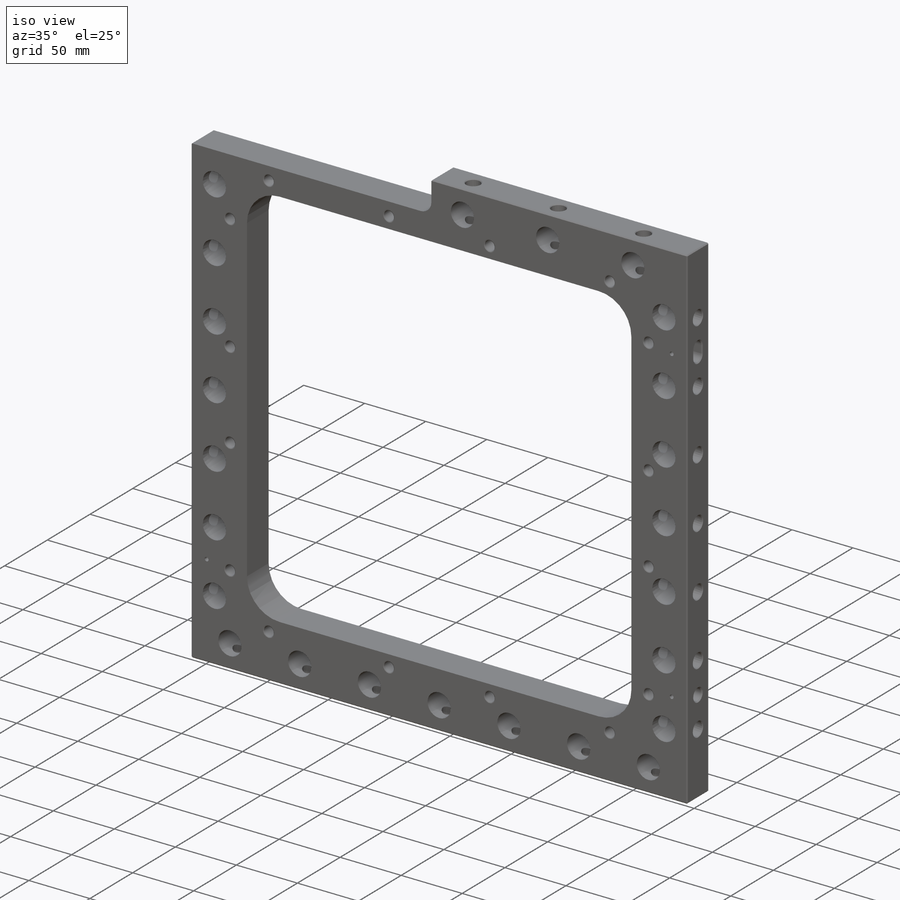
[diagram: iso view]
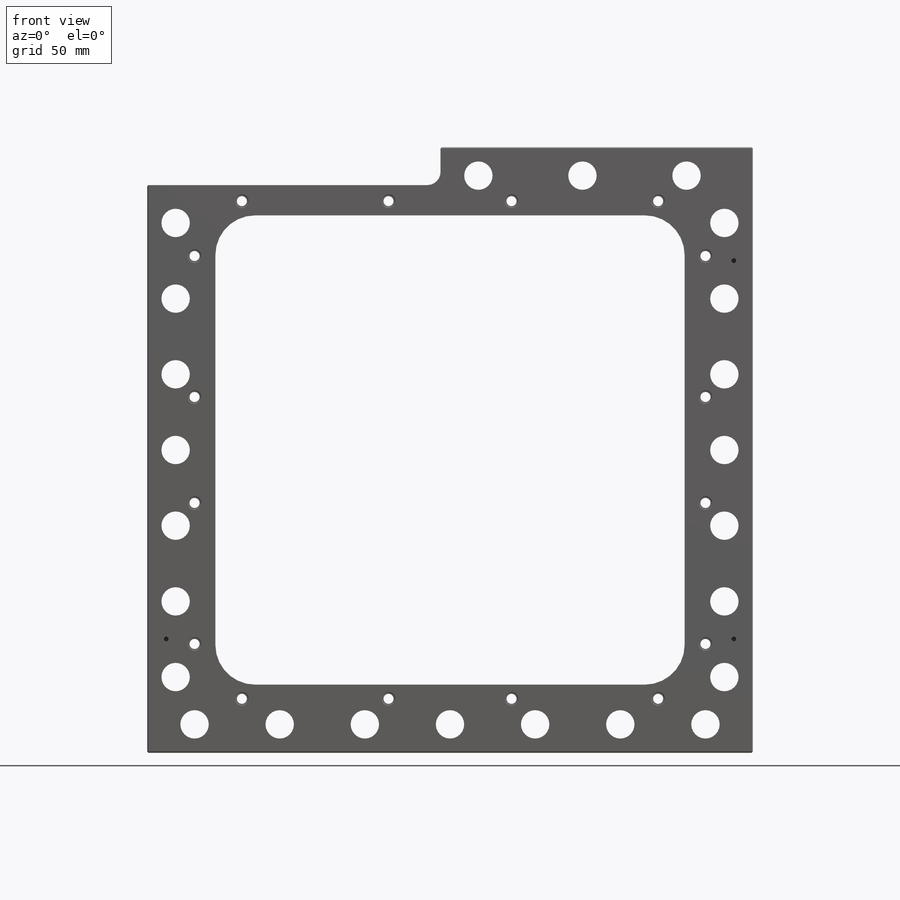
[diagram: front view]
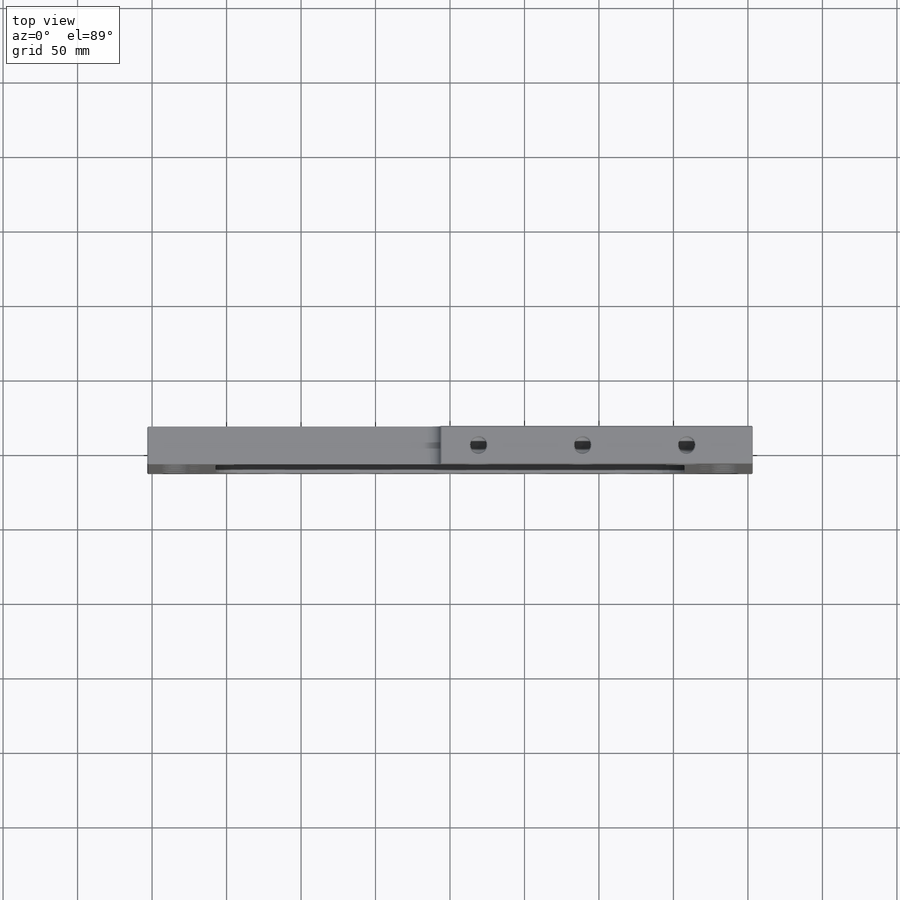
[diagram: top view]
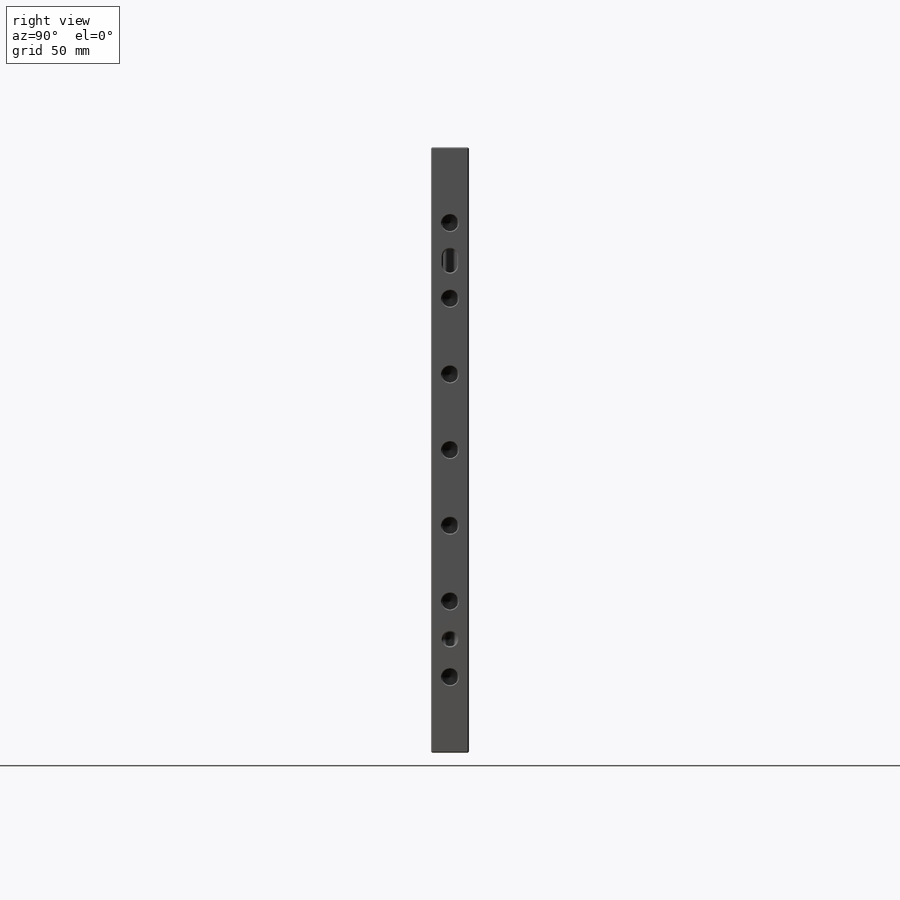
[diagram: right view]
SOLIDWORKS PART (.sldprt)
format: sldprt  version: not decoded by parser v0  size: 1,001,984 bytes
history: native  units: mm
features: sketch x23, hole x10, pattern_linear x3, cut_extrude x2, fillet x2, chamfer x2, material x1, extrude x1, mirror x1 (+14 scaffold rows collapsed)
feature tree (59):
  scaffold x14  (default folders/planes/origin — collapsed)
  material  "6061-T6 Al"
  sketch  "Sketch1"  dims[D1=406.4mm D2=209.55mm D3=406.4mm D4=25.4mm]
  extrude  "Extrude1"  Depth=25.4mm
  hole  "3/4 (0.75) Diameter Hole1"  Diameter=19.05mm Depth=25.4mm
  sketch  "Sketch4"  dims[D1=19.05mm]
  sketch  "Sketch3"  dims[hole-wizard template sketch: 61 standard entries collapsed; hole parameters above]
  hole  "7/16 (0.4375) Diameter Hole1"  Diameter=11.1125mm Depth=34.925mm
  sketch  "Sketch6"
  sketch  "Sketch5"  dims[hole-wizard template sketch: 46 standard entries collapsed; hole parameters above]
  hole  "7/16 (0.4375) Diameter Hole2"  Diameter=11.1125mm Depth=34.925mm
  sketch  "Sketch8"
  sketch  "Sketch7"  dims[hole-wizard template sketch: 46 standard entries collapsed; hole parameters above]
  pattern_linear  "LPattern1"  Count1=4 Count2=4 Spacing1=50.8mm Spacing2=50.8mm
  hole  "3/4 (0.75) Diameter Hole2"  Diameter=19.05mm Depth=34.925mm
  sketch  "Sketch10"  dims[D1=19.05mm]
  sketch  "Sketch9"  dims[hole-wizard template sketch: 47 standard entries collapsed; hole parameters kept: c15.Hole Depth=34.925mm c15.D3=~14.816244mm c15.Drill Angle=118.0deg]
  hole  "7/16 (0.4375) Diameter Hole3"  Diameter=11.1125mm Depth=34.925mm
  sketch  "Sketch12"
  sketch  "Sketch11"  dims[hole-wizard template sketch: 46 standard entries collapsed; hole parameters above]
  hole  "3/4 (0.75) Diameter Hole3"  Diameter=19.05mm Depth=25.4mm
  sketch  "Sketch16"  dims[D1=222.25mm]
  sketch  "Sketch17"  dims[hole-wizard template sketch: 61 standard entries collapsed; hole parameters above]
  hole  "7/16 (0.4375) Diameter Hole4"  Diameter=11.1125mm Depth=34.925mm
  sketch  "Sketch14"
  sketch  "Sketch13"  dims[hole-wizard template sketch: 46 standard entries collapsed; hole parameters above]
  pattern_linear  "LPattern2"  Count1=4 Count2=4 Spacing1=57.15mm Spacing2=57.15mm
  pattern_linear  "LPattern3"  Count1=3 Count2=1 Spacing1=69.85mm Spacing2=57.15mm
  sketch  "Sketch18"  dims[D1=45.72mm D2=45.72mm]
  cut_extrude  "Cut-Extrude1"  [1 undecoded]
  fillet  "Fillet1"  Radius=26.67mm
  fillet  "Fillet2"  Radius=8.89mm
  hole  "Tapped Hole for 1/4-20 Helicoil1"  Diameter=6.7564mm Depth=25.4mm
  sketch  "Sketch20"  dims[c1.D1=9.525mm c1.D2=85.725mm c1.D3=88.9mm c1.D4=82.55mm c1.D5=71.12mm c2.D2=279.4mm c2.D3=260.35mm c2.D1=342.9mm c2.D6=334.01mm]
  sketch  "Sketch19"  dims[hole-wizard template sketch: 44 standard entries collapsed; hole parameters kept: c12.Thread Depth=15.7226mm c12.Near C'Sink Dia.=9.144mm c12.D6=~4.399409mm c12.Near C'Sink Angle=120.0deg]
  hole  "3/8 (0.376) Pin Locate1"  Diameter=9.5504mm Depth=15.24mm
  sketch  "Sketch24"  dims[D1=127.0mm]
  sketch  "Sketch23"  dims[hole-wizard template sketch: 40 standard entries collapsed; hole parameters kept: c13.Hole Depth=15.24mm c13.Near C'Sink Dia.=11.176mm c13.D4=~33.297463mm c13.Near C'Sink Angle=82.0deg c14.D5=~14.816244mm c14.Drill Angle=118.0deg]
  sketch  "Sketch27"  dims[c1.D1=6.35mm c1.D3=9.5504mm c2.D1=2.54mm c2.D2=4.7752mm]
  cut_extrude  "Cut-Extrude2"  Depth=15.24mm
  chamfer  "Chamfer1"  Distance=0.762mm Angle=45deg
  mirror  "Mirror1"
  hole  "1/8 (0.125) Diameter Hole1"  Diameter=3.175mm Depth=9.652mm
  sketch  "Sketch26"  dims[D1=2.54mm]
  sketch  "Sketch25"  dims[hole-wizard template sketch: 47 standard entries collapsed; hole parameters kept: c15.Hole Depth=9.652mm c15.D3=~14.816244mm c15.Drill Angle=118.0deg]
  chamfer  "Chamfer2"  Distance=0.762mm Angle=45deg
decode coverage: 38 of 44 modeling features carry decoded parameters
note: ~ marks probable driven/reference dimensions
note: 1 parameter value undecoded
summary: Diameter pulled from absorbed wizard sketch
note: suppression state not decoded; provenance and decode notes live in map.json
